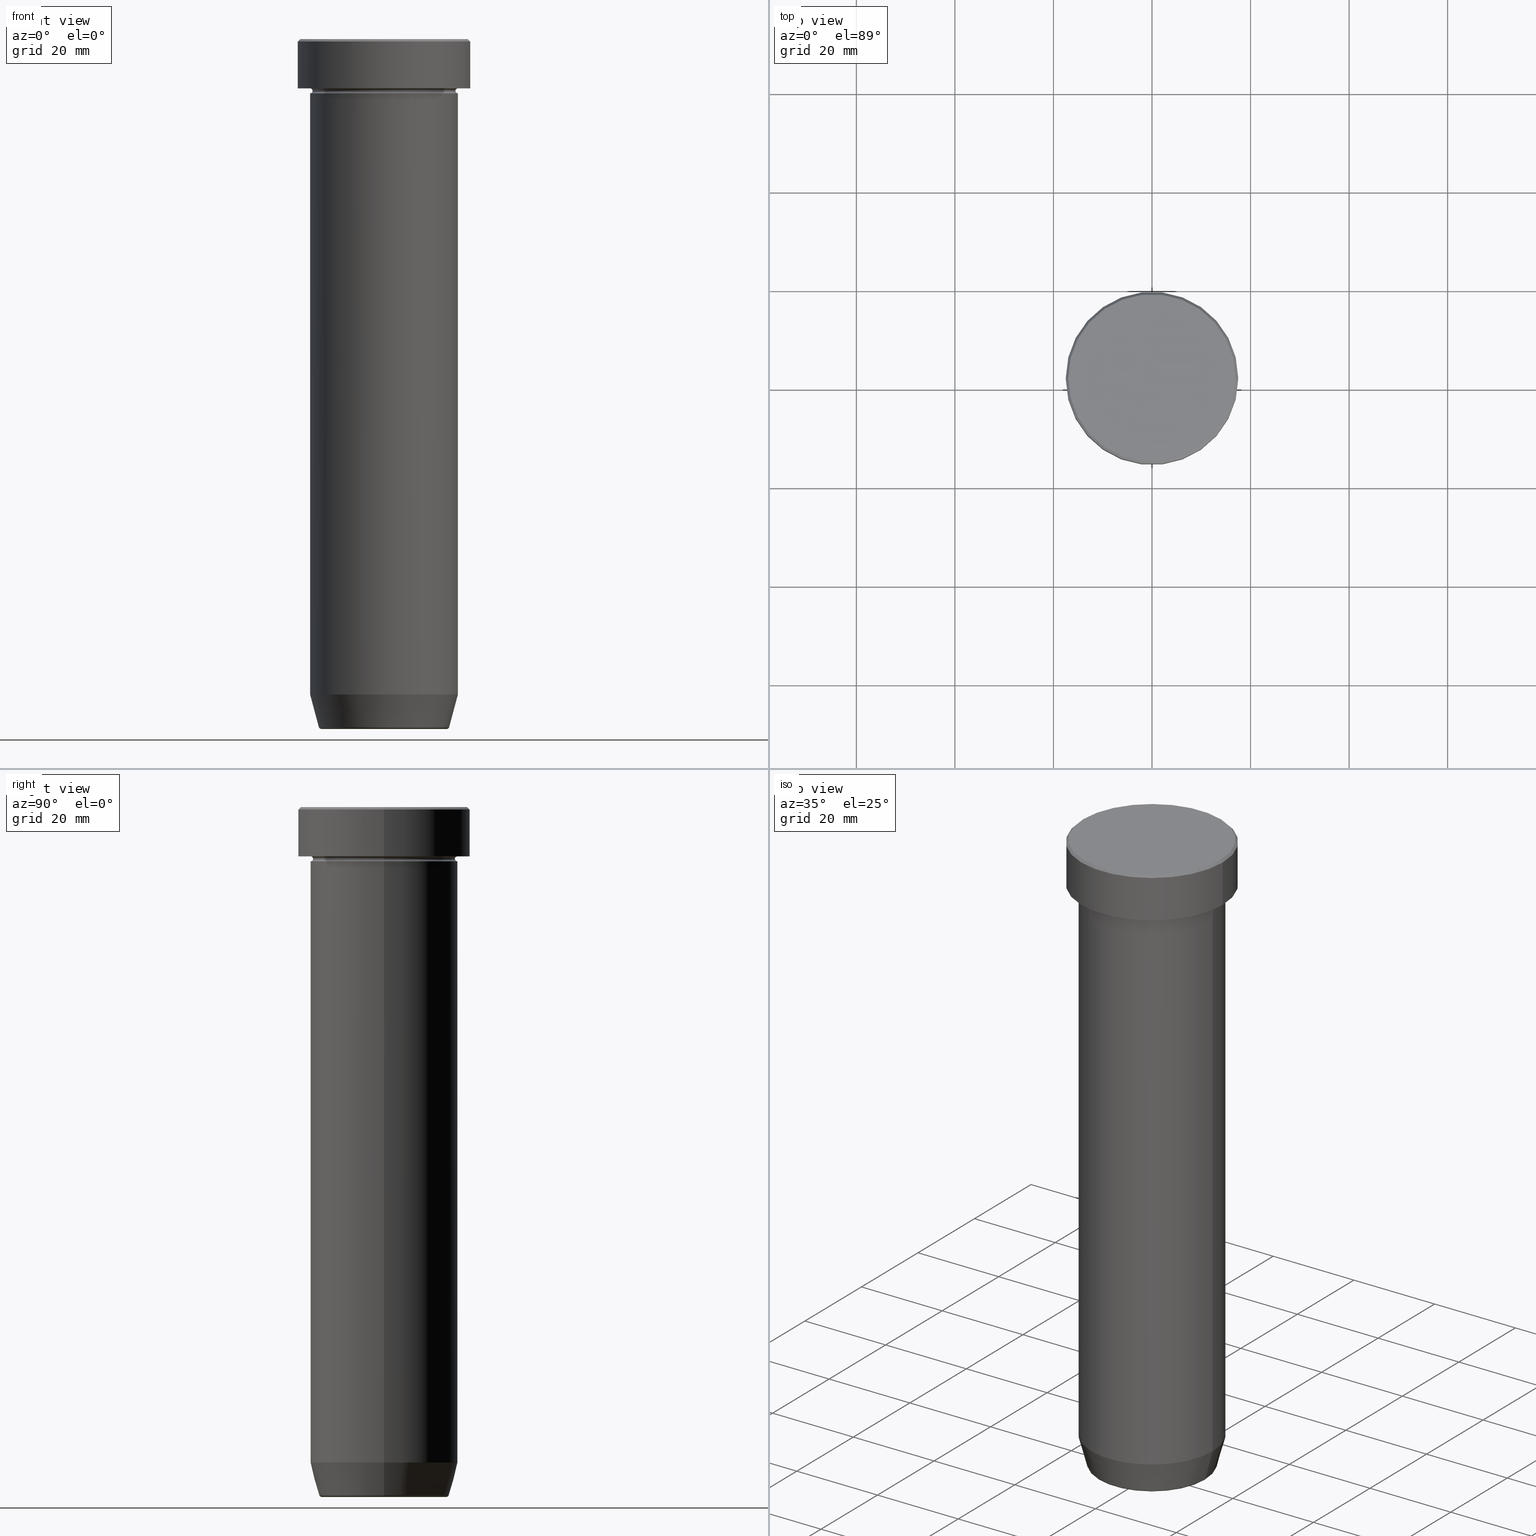
[diagram: canonical four-view strip — front | top / right | iso, engineering-drawing reading convention]
A machine part, canonical four-view strip (front | top / right | iso — engineering-drawing reading convention). The complete STEP part file that produces these views, byte-faithful:
ISO-10303-21;
HEADER;
FILE_DESCRIPTION (( 'STEP AP203' ),
    '1' );
FILE_NAME ('9180.STEP',
    '2024-01-02T17:38:51',
    ( '' ),
    ( '' ),
    'SwSTEP 2.0',
    'SolidWorks 2019',
    '' );
FILE_SCHEMA (( 'CONFIG_CONTROL_DESIGN' ));
ENDSEC;

DATA;
#1 = ORIENTED_EDGE ( 'NONE', *, *, #162, .F. ) ;
#2 = ADVANCED_FACE ( 'NONE', ( #18 ), #221, .F. ) ;
#3 = DIRECTION ( 'NONE',  ( 0.000000000000000000, 0.000000000000000000, -1.000000000000000000 ) ) ;
#4 = VERTEX_POINT ( 'NONE', #153 ) ;
#5 = EDGE_CURVE ( 'NONE', #366, #306, #175, .T. ) ;
#6 = AXIS2_PLACEMENT_3D ( 'NONE', #473, #96, #525 ) ;
#7 = ORIENTED_EDGE ( 'NONE', *, *, #393, .F. ) ;
#8 = PRODUCT_RELATED_PRODUCT_CATEGORY ( 'detail', '', ( #274 ) ) ;
#9 = DIRECTION ( 'NONE',  ( -0.000000000000000000, -0.000000000000000000, 1.000000000000000000 ) ) ;
#10 = EDGE_LOOP ( 'NONE', ( #507, #598, #11, #385 ) ) ;
#11 = ORIENTED_EDGE ( 'NONE', *, *, #591, .F. ) ;
#12 = CARTESIAN_POINT ( 'NONE',  ( 0.000000000000000000, 0.000000000000000000, -36.00000000000000000 ) ) ;
#13 = AXIS2_PLACEMENT_3D ( 'NONE', #69, #258, #444 ) ;
#14 = VECTOR ( 'NONE', #330, 1000.000000000000000 ) ;
#15 = ORIENTED_EDGE ( 'NONE', *, *, #407, .T. ) ;
#16 = PERSON_AND_ORGANIZATION_ROLE ( 'design_supplier' ) ;
#17 = DIRECTION ( 'NONE',  ( 0.2588190451025214611, 0.000000000000000000, 0.9659258262890680902 ) ) ;
#18 = FACE_OUTER_BOUND ( 'NONE', #420, .T. ) ;
#19 = MECHANICAL_CONTEXT ( 'NONE', #140, 'mechanical' ) ;
#20 = CARTESIAN_POINT ( 'NONE',  ( 0.000000000000000000, 0.000000000000000000, -11.00000000000000000 ) ) ;
#21 = CARTESIAN_POINT ( 'NONE',  ( 0.000000000000000000, 0.000000000000000000, -139.9999999999999716 ) ) ;
#22 = DIRECTION ( 'NONE',  ( -1.000000000000000000, -1.224646799147349509E-16, 0.000000000000000000 ) ) ;
#23 = CONICAL_SURFACE ( 'NONE', #369, 13.12435565298212659, 0.2617993877991501850 ) ;
#24 = CARTESIAN_POINT ( 'NONE',  ( 0.000000000000000000, 0.000000000000000000, 0.000000000000000000 ) ) ;
#25 = DIRECTION ( 'NONE',  ( 1.000000000000000000, 0.000000000000000000, 0.000000000000000000 ) ) ;
#26 = APPROVAL_STATUS ( 'not_yet_approved' ) ;
#27 = CIRCLE ( 'NONE', #513, 17.00000000000000000 ) ;
#28 = DIRECTION ( 'NONE',  ( -0.000000000000000000, -0.000000000000000000, 1.000000000000000000 ) ) ;
#29 = CYLINDRICAL_SURFACE ( 'NONE', #334, 17.50000000000000000 ) ;
#30 = DIRECTION ( 'NONE',  ( 0.000000000000000000, 0.000000000000000000, -1.000000000000000000 ) ) ;
#31 = AXIS2_PLACEMENT_3D ( 'NONE', #12, #390, #133 ) ;
#32 = EDGE_CURVE ( 'NONE', #478, #254, #537, .T. ) ;
#33 = AXIS2_PLACEMENT_3D ( 'NONE', #477, #194, #99 ) ;
#34 = DIRECTION ( 'NONE',  ( -0.000000000000000000, -0.000000000000000000, 1.000000000000000000 ) ) ;
#35 = CYLINDRICAL_SURFACE ( 'NONE', #84, 15.00000000000000000 ) ;
#36 = EDGE_LOOP ( 'NONE', ( #509, #553 ) ) ;
#37 = CIRCLE ( 'NONE', #387, 0.5000000000000004441 ) ;
#38 = CARTESIAN_POINT ( 'NONE',  ( -17.00000000000000000, 0.000000000000000000, 0.000000000000000000 ) ) ;
#39 = ORIENTED_EDGE ( 'NONE', *, *, #363, .T. ) ;
#40 = CONICAL_SURFACE ( 'NONE', #442, 17.00000000000000000, 0.7853981633974415066 ) ;
#41 = APPROVAL_ROLE ( '' ) ;
#42 = TOROIDAL_SURFACE ( 'NONE', #61, 12.74069215899265117, 0.5000000000000000000 ) ;
#43 = ADVANCED_FACE ( 'NONE', ( #161 ), #246, .T. ) ;
#44 = ORIENTED_EDGE ( 'NONE', *, *, #117, .F. ) ;
#45 = CARTESIAN_POINT ( 'NONE',  ( 0.000000000000000000, 0.000000000000000000, -36.00000000000000000 ) ) ;
#46 = VERTEX_POINT ( 'NONE', #405 ) ;
#47 = FACE_OUTER_BOUND ( 'NONE', #86, .T. ) ;
#48 = DIRECTION ( 'NONE',  ( -0.000000000000000000, -0.000000000000000000, 1.000000000000000000 ) ) ;
#49 = VERTEX_POINT ( 'NONE', #540 ) ;
#50 = CIRCLE ( 'NONE', #131, 17.50000000000000000 ) ;
#51 = CARTESIAN_POINT ( 'NONE',  ( 0.000000000000000000, 0.000000000000000000, -10.49999999999999822 ) ) ;
#52 = CARTESIAN_POINT ( 'NONE',  ( -12.74069215899265117, 1.560284787143213112E-15, -139.4999999999999716 ) ) ;
#53 = ORIENTED_EDGE ( 'NONE', *, *, #590, .F. ) ;
#54 = CARTESIAN_POINT ( 'NONE',  ( 0.000000000000000000, 0.000000000000000000, -9.999999999999998224 ) ) ;
#55 = CARTESIAN_POINT ( 'NONE',  ( 0.000000000000000000, 0.000000000000000000, -0.5000000000000073275 ) ) ;
#56 = ORIENTED_EDGE ( 'NONE', *, *, #590, .T. ) ;
#57 = DIRECTION ( 'NONE',  ( -0.000000000000000000, -0.000000000000000000, 1.000000000000000000 ) ) ;
#58 = DIRECTION ( 'NONE',  ( 0.000000000000000000, -0.000000000000000000, 1.000000000000000000 ) ) ;
#59 = EDGE_LOOP ( 'NONE', ( #1, #80, #549, #98 ) ) ;
#60 = PRODUCT_DEFINITION_FORMATION_WITH_SPECIFIED_SOURCE ( 'LIBOVOLN�', '', #274, .NOT_KNOWN. ) ;
#61 = AXIS2_PLACEMENT_3D ( 'NONE', #188, #48, #381 ) ;
#62 = DIRECTION ( 'NONE',  ( 0.000000000000000000, 0.000000000000000000, -1.000000000000000000 ) ) ;
#63 = PERSON_AND_ORGANIZATION_ROLE ( 'creator' ) ;
#64 = CARTESIAN_POINT ( 'NONE',  ( 0.000000000000000000, 0.000000000000000000, -139.6294095225512422 ) ) ;
#65 = ORIENTED_EDGE ( 'NONE', *, *, #316, .T. ) ;
#66 = DIRECTION ( 'NONE',  ( -0.000000000000000000, -0.000000000000000000, 1.000000000000000000 ) ) ;
#67 = DIRECTION ( 'NONE',  ( -1.000000000000000000, 0.000000000000000000, 0.000000000000000000 ) ) ;
#68 = DIRECTION ( 'NONE',  ( 1.000000000000000000, 0.000000000000000000, 0.000000000000000000 ) ) ;
#69 = CARTESIAN_POINT ( 'NONE',  ( 0.000000000000000000, 0.000000000000000000, 0.000000000000000000 ) ) ;
#70 = CIRCLE ( 'NONE', #31, 15.00000000000000000 ) ;
#71 = LINE ( 'NONE', #545, #199 ) ;
#72 = APPLICATION_PROTOCOL_DEFINITION ( 'international standard', 'config_control_design', 1994, #140 ) ;
#73 = APPLICATION_PROTOCOL_DEFINITION ( 'international standard', 'config_control_design', 1994, #515 ) ;
#74 = DIRECTION ( 'NONE',  ( -0.000000000000000000, -0.000000000000000000, 1.000000000000000000 ) ) ;
#75 = AXIS2_PLACEMENT_3D ( 'NONE', #111, #74, #354 ) ;
#76 = CARTESIAN_POINT ( 'NONE',  ( 17.50000000000000000, 0.000000000000000000, -9.999999999999998224 ) ) ;
#77 = VERTEX_POINT ( 'NONE', #585 ) ;
#78 = COORDINATED_UNIVERSAL_TIME_OFFSET ( 1, 0, .AHEAD. ) ;
#79 = CYLINDRICAL_SURFACE ( 'NONE', #523, 15.00000000000000000 ) ;
#80 = ORIENTED_EDGE ( 'NONE', *, *, #321, .T. ) ;
#81 = CARTESIAN_POINT ( 'NONE',  ( -17.50000000000000000, 2.143131898507868248E-15, -9.999999999999998224 ) ) ;
#82 = VERTEX_POINT ( 'NONE', #165 ) ;
#83 = AXIS2_PLACEMENT_3D ( 'NONE', #564, #139, #338 ) ;
#84 = AXIS2_PLACEMENT_3D ( 'NONE', #85, #514, #461 ) ;
#85 = CARTESIAN_POINT ( 'NONE',  ( 0.000000000000000000, 0.000000000000000000, 0.000000000000000000 ) ) ;
#86 = EDGE_LOOP ( 'NONE', ( #372, #205, #104, #100 ) ) ;
#87 = DIRECTION ( 'NONE',  ( 1.000000000000000000, 0.000000000000000000, 0.000000000000000000 ) ) ;
#88 = CARTESIAN_POINT ( 'NONE',  ( 0.000000000000000000, 0.000000000000000000, -10.49999999999999822 ) ) ;
#89 = ORIENTED_EDGE ( 'NONE', *, *, #307, .T. ) ;
#90 = ADVANCED_FACE ( 'NONE', ( #360 ), #166, .T. ) ;
#91 = DIRECTION ( 'NONE',  ( 1.000000000000000000, 0.000000000000000000, 0.000000000000000000 ) ) ;
#92 = CARTESIAN_POINT ( 'NONE',  ( -15.00000000000000000, 1.836970198721029589E-15, -10.49999999999999822 ) ) ;
#93 = ORIENTED_EDGE ( 'NONE', *, *, #505, .T. ) ;
#94 = ADVANCED_FACE ( 'NONE', ( #220 ), #23, .T. ) ;
#95 = DESIGN_CONTEXT ( 'detailed design', #515, 'design' ) ;
#96 = DIRECTION ( 'NONE',  ( -0.000000000000000000, -0.000000000000000000, 1.000000000000000000 ) ) ;
#97 = CARTESIAN_POINT ( 'NONE',  ( -17.50000000000000000, 2.143131898507868248E-15, -0.5000000000000073275 ) ) ;
#98 = ORIENTED_EDGE ( 'NONE', *, *, #177, .F. ) ;
#99 = DIRECTION ( 'NONE',  ( 0.000000000000000000, 0.000000000000000000, -1.000000000000000000 ) ) ;
#100 = ORIENTED_EDGE ( 'NONE', *, *, #5, .F. ) ;
#101 = DIRECTION ( 'NONE',  ( 1.000000000000000000, 0.000000000000000000, 0.000000000000000000 ) ) ;
#102 = EDGE_CURVE ( 'NONE', #223, #366, #71, .T. ) ;
#103 = PLANE ( 'NONE',  #576 ) ;
#104 = ORIENTED_EDGE ( 'NONE', *, *, #375, .T. ) ;
#105 = CARTESIAN_POINT ( 'NONE',  ( 12.74069215899265117, 0.000000000000000000, -139.4999999999999716 ) ) ;
#106 = CIRCLE ( 'NONE', #568, 15.00000000000000000 ) ;
#107 = ORIENTED_EDGE ( 'NONE', *, *, #216, .F. ) ;
#108 = DIRECTION ( 'NONE',  ( 1.000000000000000000, 0.000000000000000000, 0.000000000000000000 ) ) ;
#109 = CIRCLE ( 'NONE', #298, 17.50000000000000000 ) ;
#110 = CARTESIAN_POINT ( 'NONE',  ( 0.000000000000000000, 0.000000000000000000, -9.999999999999998224 ) ) ;
#111 = CARTESIAN_POINT ( 'NONE',  ( 0.000000000000000000, 0.000000000000000000, -139.4999999999999716 ) ) ;
#112 = CIRCLE ( 'NONE', #457, 15.00000000000000000 ) ;
#113 = DIRECTION ( 'NONE',  ( 0.000000000000000000, -1.000000000000000000, 0.000000000000000000 ) ) ;
#114 = CIRCLE ( 'NONE', #83, 12.74069215899265117 ) ;
#115 = AXIS2_PLACEMENT_3D ( 'NONE', #245, #150, #580 ) ;
#116 = APPROVAL_DATE_TIME ( #151, #593 ) ;
#117 = EDGE_CURVE ( 'NONE', #229, #306, #123, .T. ) ;
#118 = DIRECTION ( 'NONE',  ( 1.000000000000000000, 0.000000000000000000, 0.000000000000000000 ) ) ;
#119 = AXIS2_PLACEMENT_3D ( 'NONE', #215, #485, #25 ) ;
#120 = DIRECTION ( 'NONE',  ( -0.000000000000000000, -0.000000000000000000, 1.000000000000000000 ) ) ;
#121 = VECTOR ( 'NONE', #376, 1000.000000000000000 ) ;
#122 = EDGE_LOOP ( 'NONE', ( #348, #516 ) ) ;
#123 = LINE ( 'NONE', #455, #557 ) ;
#124 = ORIENTED_EDGE ( 'NONE', *, *, #510, .F. ) ;
#125 = SHAPE_DEFINITION_REPRESENTATION ( #328, #225 ) ;
#126 = ORIENTED_EDGE ( 'NONE', *, *, #496, .T. ) ;
#127 = APPROVAL_DATE_TIME ( #588, #522 ) ;
#128 = TOROIDAL_SURFACE ( 'NONE', #422, 15.00000000000000000, 0.5000000000000000000 ) ;
#129 = FACE_OUTER_BOUND ( 'NONE', #533, .T. ) ;
#130 = VERTEX_POINT ( 'NONE', #552 ) ;
#131 = AXIS2_PLACEMENT_3D ( 'NONE', #54, #57, #435 ) ;
#132 = CC_DESIGN_SECURITY_CLASSIFICATION ( #198, ( #60 ) ) ;
#133 = DIRECTION ( 'NONE',  ( 1.000000000000000000, 0.000000000000000000, 0.000000000000000000 ) ) ;
#134 = ADVANCED_FACE ( 'NONE', ( #179 ), #79, .T. ) ;
#135 = ORIENTED_EDGE ( 'NONE', *, *, #407, .F. ) ;
#136 = LINE ( 'NONE', #570, #14 ) ;
#137 = DIRECTION ( 'NONE',  ( -0.000000000000000000, -0.000000000000000000, 1.000000000000000000 ) ) ;
#138 = ORIENTED_EDGE ( 'NONE', *, *, #117, .T. ) ;
#139 = DIRECTION ( 'NONE',  ( 0.000000000000000000, 0.000000000000000000, -1.000000000000000000 ) ) ;
#140 = APPLICATION_CONTEXT ( 'configuration controlled 3d designs of mechanical parts and assemblies' ) ;
#141 = EDGE_LOOP ( 'NONE', ( #432, #15 ) ) ;
#142 = AXIS2_PLACEMENT_3D ( 'NONE', #64, #252, #544 ) ;
#143 = EDGE_CURVE ( 'NONE', #4, #82, #592, .T. ) ;
#144 = LOCAL_TIME ( 18, 38, 51.00000000000000000, #351 ) ;
#145 = CIRCLE ( 'NONE', #425, 15.00000000000000000 ) ;
#146 = DIRECTION ( 'NONE',  ( -0.000000000000000000, -0.000000000000000000, 1.000000000000000000 ) ) ;
#147 = ORIENTED_EDGE ( 'NONE', *, *, #102, .F. ) ;
#148 = FACE_OUTER_BOUND ( 'NONE', #10, .T. ) ;
#149 = DIRECTION ( 'NONE',  ( 1.000000000000000000, 0.000000000000000000, 0.000000000000000000 ) ) ;
#150 = DIRECTION ( 'NONE',  ( 0.000000000000000000, 0.000000000000000000, -1.000000000000000000 ) ) ;
#151 = DATE_AND_TIME ( #256, #310 ) ;
#152 = DIRECTION ( 'NONE',  ( 1.000000000000000000, 0.000000000000000000, 0.000000000000000000 ) ) ;
#153 = CARTESIAN_POINT ( 'NONE',  ( 15.00000000000000000, 0.000000000000000000, -36.00000000000000000 ) ) ;
#154 = AXIS2_PLACEMENT_3D ( 'NONE', #347, #137, #285 ) ;
#155 = PERSON_AND_ORGANIZATION ( #339, #185 ) ;
#156 = AXIS2_PLACEMENT_3D ( 'NONE', #427, #9, #520 ) ;
#157 = DIRECTION ( 'NONE',  ( 0.000000000000000000, 0.000000000000000000, -1.000000000000000000 ) ) ;
#158 = CIRCLE ( 'NONE', #186, 15.00000000000000000 ) ;
#159 = CC_DESIGN_PERSON_AND_ORGANIZATION_ASSIGNMENT ( #357, #203, ( #198 ) ) ;
#160 = CARTESIAN_POINT ( 'NONE',  ( 0.000000000000000000, 0.000000000000000000, 0.000000000000000000 ) ) ;
#161 = FACE_OUTER_BOUND ( 'NONE', #325, .T. ) ;
#162 = EDGE_CURVE ( 'NONE', #475, #130, #169, .T. ) ;
#163 = SECURITY_CLASSIFICATION_LEVEL ( 'unclassified' ) ;
#164 = APPROVAL_ROLE ( '' ) ;
#165 = CARTESIAN_POINT ( 'NONE',  ( 15.00000000000000000, 0.000000000000000000, -11.00000000000000000 ) ) ;
#166 = CONICAL_SURFACE ( 'NONE', #270, 17.00000000000000000, 0.7853981633974415066 ) ;
#167 = ADVANCED_FACE ( 'NONE', ( #129 ), #35, .T. ) ;
#168 = PLANE ( 'NONE',  #301 ) ;
#169 = LINE ( 'NONE', #273, #414 ) ;
#170 = EDGE_LOOP ( 'NONE', ( #44, #465, #181, #382 ) ) ;
#171 = CIRCLE ( 'NONE', #519, 14.49999999999999822 ) ;
#172 = FACE_OUTER_BOUND ( 'NONE', #196, .T. ) ;
#173 = CIRCLE ( 'NONE', #586, 0.5000000000000004441 ) ;
#174 = ORIENTED_EDGE ( 'NONE', *, *, #197, .F. ) ;
#175 = CIRCLE ( 'NONE', #115, 17.50000000000000000 ) ;
#176 = DIRECTION ( 'NONE',  ( -1.000000000000000000, 0.000000000000000000, 0.000000000000000000 ) ) ;
#177 = EDGE_CURVE ( 'NONE', #130, #254, #145, .T. ) ;
#178 = ORIENTED_EDGE ( 'NONE', *, *, #453, .T. ) ;
#179 = FACE_OUTER_BOUND ( 'NONE', #331, .T. ) ;
#180 = AXIS2_PLACEMENT_3D ( 'NONE', #303, #497, #373 ) ;
#181 = ORIENTED_EDGE ( 'NONE', *, *, #102, .T. ) ;
#182 = FACE_OUTER_BOUND ( 'NONE', #528, .T. ) ;
#183 = DIRECTION ( 'NONE',  ( 1.000000000000000000, 0.000000000000000000, 0.000000000000000000 ) ) ;
#184 = ORIENTED_EDGE ( 'NONE', *, *, #363, .F. ) ;
#185 = ORGANIZATION ( 'NEUR�EN�', 'NEUR�EN�', '' ) ;
#186 = AXIS2_PLACEMENT_3D ( 'NONE', #452, #558, #503 ) ;
#187 = DIRECTION ( 'NONE',  ( -1.000000000000000000, 0.000000000000000000, 0.000000000000000000 ) ) ;
#188 = CARTESIAN_POINT ( 'NONE',  ( 0.000000000000000000, 0.000000000000000000, -139.4999999999999716 ) ) ;
#189 = ORIENTED_EDGE ( 'NONE', *, *, #364, .T. ) ;
#190 = FACE_OUTER_BOUND ( 'NONE', #504, .T. ) ;
#191 = CARTESIAN_POINT ( 'NONE',  ( -15.00000000000000000, 0.000000000000000000, -9.999999999999998224 ) ) ;
#192 = VERTEX_POINT ( 'NONE', #38 ) ;
#193 = CARTESIAN_POINT ( 'NONE',  ( 0.000000000000000000, 0.000000000000000000, -139.9999999999999716 ) ) ;
#194 = DIRECTION ( 'NONE',  ( 0.000000000000000000, -1.000000000000000000, 0.000000000000000000 ) ) ;
#195 = CIRCLE ( 'NONE', #142, 13.22365507213718416 ) ;
#196 = EDGE_LOOP ( 'NONE', ( #344, #240 ) ) ;
#197 = EDGE_CURVE ( 'NONE', #242, #82, #237, .T. ) ;
#198 = SECURITY_CLASSIFICATION ( '', '', #163 ) ;
#199 = VECTOR ( 'NONE', #599, 1000.000000000000000 ) ;
#200 = DIRECTION ( 'NONE',  ( -0.000000000000000000, -0.000000000000000000, 1.000000000000000000 ) ) ;
#201 = EDGE_LOOP ( 'NONE', ( #124, #189, #89, #227 ) ) ;
#202 = EDGE_CURVE ( 'NONE', #4, #46, #226, .T. ) ;
#203 = PERSON_AND_ORGANIZATION_ROLE ( 'classification_officer' ) ;
#204 = CARTESIAN_POINT ( 'NONE',  ( 0.000000000000000000, 0.000000000000000000, -132.9999999999999432 ) ) ;
#205 = ORIENTED_EDGE ( 'NONE', *, *, #401, .F. ) ;
#206 = PERSON_AND_ORGANIZATION ( #339, #185 ) ;
#207 = EDGE_CURVE ( 'NONE', #295, #49, #106, .T. ) ;
#208 = CARTESIAN_POINT ( 'NONE',  ( 17.50000000000000000, 0.000000000000000000, -0.5000000000000073275 ) ) ;
#209 = DIRECTION ( 'NONE',  ( -0.000000000000000000, -0.000000000000000000, 1.000000000000000000 ) ) ;
#210 = CARTESIAN_POINT ( 'NONE',  ( 0.000000000000000000, 0.000000000000000000, -36.00000000000000000 ) ) ;
#211 = ADVANCED_FACE ( 'NONE', ( #230, #317 ), #458, .T. ) ;
#212 = CARTESIAN_POINT ( 'NONE',  ( 17.00000000000000000, 2.081899558550500280E-15, 0.000000000000000000 ) ) ;
#213 = APPROVAL_DATE_TIME ( #443, #253 ) ;
#214 = DIRECTION ( 'NONE',  ( 1.000000000000000000, 0.000000000000000000, 0.000000000000000000 ) ) ;
#215 = CARTESIAN_POINT ( 'NONE',  ( 0.000000000000000000, 0.000000000000000000, -139.9999999999999716 ) ) ;
#216 = EDGE_CURVE ( 'NONE', #49, #295, #158, .T. ) ;
#217 = TOROIDAL_SURFACE ( 'NONE', #483, 15.00000000000000000, 0.5000000000000000000 ) ;
#218 = DIRECTION ( 'NONE',  ( 1.000000000000000000, 0.000000000000000000, 0.000000000000000000 ) ) ;
#219 = CIRCLE ( 'NONE', #555, 13.22365507213718416 ) ;
#220 = FACE_OUTER_BOUND ( 'NONE', #201, .T. ) ;
#221 = TOROIDAL_SURFACE ( 'NONE', #350, 15.00000000000000000, 0.5000000000000000000 ) ;
#222 = PERSON_AND_ORGANIZATION ( #339, #185 ) ;
#223 = VERTEX_POINT ( 'NONE', #76 ) ;
#224 = DIRECTION ( 'NONE',  ( 1.000000000000000000, 0.000000000000000000, 0.000000000000000000 ) ) ;
#225 = ADVANCED_BREP_SHAPE_REPRESENTATION ( '9180', ( #490, #308, #263 ), #450 ) ;
#226 = CIRCLE ( 'NONE', #409, 15.00000000000000000 ) ;
#227 = ORIENTED_EDGE ( 'NONE', *, *, #321, .F. ) ;
#228 = DIRECTION ( 'NONE',  ( -1.000000000000000000, 0.000000000000000000, -0.000000000000000000 ) ) ;
#229 = VERTEX_POINT ( 'NONE', #81 ) ;
#230 = FACE_BOUND ( 'NONE', #36, .T. ) ;
#231 = ORIENTED_EDGE ( 'NONE', *, *, #279, .T. ) ;
#232 = ADVANCED_FACE ( 'NONE', ( #172 ), #371, .F. ) ;
#233 = DIRECTION ( 'NONE',  ( -0.000000000000000000, -1.000000000000000000, -0.000000000000000000 ) ) ;
#234 = DIRECTION ( 'NONE',  ( 1.224646799147353207E-16, 1.000000000000000000, 0.000000000000000000 ) ) ;
#235 = ORIENTED_EDGE ( 'NONE', *, *, #467, .F. ) ;
#236 = AXIS2_PLACEMENT_3D ( 'NONE', #210, #66, #68 ) ;
#237 = CIRCLE ( 'NONE', #494, 15.00000000000000000 ) ;
#238 = CYLINDRICAL_SURFACE ( 'NONE', #156, 17.50000000000000000 ) ;
#239 = CARTESIAN_POINT ( 'NONE',  ( -14.49999999999999822, 1.806354028742345802E-15, -10.49999999999999822 ) ) ;
#240 = ORIENTED_EDGE ( 'NONE', *, *, #572, .T. ) ;
#241 = DIRECTION ( 'NONE',  ( 1.224646799147353207E-16, 1.000000000000000000, 0.000000000000000000 ) ) ;
#242 = VERTEX_POINT ( 'NONE', #464 ) ;
#243 = CARTESIAN_POINT ( 'NONE',  ( -15.00000000000000000, 1.836970198721029589E-15, 0.000000000000000000 ) ) ;
#244 = DIRECTION ( 'NONE',  ( 1.000000000000000000, 0.000000000000000000, 0.000000000000000000 ) ) ;
#245 = CARTESIAN_POINT ( 'NONE',  ( 0.000000000000000000, 0.000000000000000000, -0.5000000000000073275 ) ) ;
#246 = TOROIDAL_SURFACE ( 'NONE', #75, 12.74069215899265117, 0.5000000000000000000 ) ;
#247 = DIRECTION ( 'NONE',  ( 1.000000000000000000, 0.000000000000000000, 0.000000000000000000 ) ) ;
#248 = CARTESIAN_POINT ( 'NONE',  ( 15.00000000000000000, 0.000000000000000000, -36.00000000000000000 ) ) ;
#249 = ORIENTED_EDGE ( 'NONE', *, *, #505, .F. ) ;
#250 = EDGE_CURVE ( 'NONE', #478, #475, #587, .T. ) ;
#251 = PERSON_AND_ORGANIZATION ( #339, #185 ) ;
#252 = DIRECTION ( 'NONE',  ( -0.000000000000000000, -0.000000000000000000, 1.000000000000000000 ) ) ;
#253 = APPROVAL ( #26, 'NEUR�EN�' ) ;
#254 = VERTEX_POINT ( 'NONE', #248 ) ;
#255 = CARTESIAN_POINT ( 'NONE',  ( 0.000000000000000000, 0.000000000000000000, 0.000000000000000000 ) ) ;
#256 = CALENDAR_DATE ( 2024, 2, 1 ) ;
#257 = APPROVAL_PERSON_ORGANIZATION ( #400, #593, #491 ) ;
#258 = DIRECTION ( 'NONE',  ( -0.000000000000000000, -0.000000000000000000, 1.000000000000000000 ) ) ;
#259 = VECTOR ( 'NONE', #28, 1000.000000000000000 ) ;
#260 = DATE_AND_TIME ( #345, #413 ) ;
#261 = CARTESIAN_POINT ( 'NONE',  ( -17.00000000000000000, 0.000000000000000000, 0.000000000000000000 ) ) ;
#262 = DIRECTION ( 'NONE',  ( -1.224646799147353207E-16, 1.000000000000000000, 0.000000000000000000 ) ) ;
#263 = AXIS2_PLACEMENT_3D ( 'NONE', #24, #437, #214 ) ;
#264 = DIRECTION ( 'NONE',  ( 1.000000000000000000, 0.000000000000000000, 0.000000000000000000 ) ) ;
#265 = EDGE_CURVE ( 'NONE', #315, #82, #292, .T. ) ;
#266 = ORIENTED_EDGE ( 'NONE', *, *, #579, .T. ) ;
#267 = CC_DESIGN_PERSON_AND_ORGANIZATION_ASSIGNMENT ( #206, #63, ( #314 ) ) ;
#268 = CARTESIAN_POINT ( 'NONE',  ( 15.00000000000000000, 0.000000000000000000, 0.000000000000000000 ) ) ;
#269 = VERTEX_POINT ( 'NONE', #574 ) ;
#270 = AXIS2_PLACEMENT_3D ( 'NONE', #449, #30, #439 ) ;
#271 = VERTEX_POINT ( 'NONE', #239 ) ;
#272 = VECTOR ( 'NONE', #539, 1000.000000000000000 ) ;
#273 = CARTESIAN_POINT ( 'NONE',  ( -15.00000000000000000, 1.836970198721029589E-15, 0.000000000000000000 ) ) ;
#274 = PRODUCT ( '9180', '9180', '', ( #19 ) ) ;
#275 = ORIENTED_EDGE ( 'NONE', *, *, #510, .T. ) ;
#276 = ORIENTED_EDGE ( 'NONE', *, *, #384, .F. ) ;
#277 = CYLINDRICAL_SURFACE ( 'NONE', #358, 15.00000000000000000 ) ;
#278 = DIRECTION ( 'NONE',  ( -0.000000000000000000, -0.000000000000000000, 1.000000000000000000 ) ) ;
#279 = EDGE_CURVE ( 'NONE', #306, #366, #399, .T. ) ;
#280 = ADVANCED_FACE ( 'NONE', ( #388 ), #42, .T. ) ;
#281 = FACE_OUTER_BOUND ( 'NONE', #335, .T. ) ;
#282 = DIRECTION ( 'NONE',  ( 0.000000000000000000, -0.000000000000000000, 1.000000000000000000 ) ) ;
#283 = ORIENTED_EDGE ( 'NONE', *, *, #453, .F. ) ;
#284 = CARTESIAN_POINT ( 'NONE',  ( 0.000000000000000000, 0.000000000000000000, -10.49999999999999822 ) ) ;
#285 = DIRECTION ( 'NONE',  ( 1.000000000000000000, 0.000000000000000000, 0.000000000000000000 ) ) ;
#286 = ORIENTED_EDGE ( 'NONE', *, *, #579, .F. ) ;
#287 = DIRECTION ( 'NONE',  ( 0.000000000000000000, 0.000000000000000000, -1.000000000000000000 ) ) ;
#288 = EDGE_CURVE ( 'NONE', #271, #242, #451, .T. ) ;
#289 = DIRECTION ( 'NONE',  ( 1.000000000000000000, 0.000000000000000000, 0.000000000000000000 ) ) ;
#290 = ORIENTED_EDGE ( 'NONE', *, *, #177, .T. ) ;
#291 = CIRCLE ( 'NONE', #236, 15.00000000000000000 ) ;
#292 = CIRCLE ( 'NONE', #33, 0.5000000000000004441 ) ;
#293 = DIRECTION ( 'NONE',  ( -0.000000000000000000, -0.000000000000000000, 1.000000000000000000 ) ) ;
#294 = EDGE_CURVE ( 'NONE', #389, #269, #416, .T. ) ;
#295 = VERTEX_POINT ( 'NONE', #191 ) ;
#296 = COORDINATED_UNIVERSAL_TIME_OFFSET ( 1, 0, .AHEAD. ) ;
#297 = DIRECTION ( 'NONE',  ( -0.000000000000000000, -0.000000000000000000, 1.000000000000000000 ) ) ;
#298 = AXIS2_PLACEMENT_3D ( 'NONE', #110, #297, #299 ) ;
#299 = DIRECTION ( 'NONE',  ( 1.000000000000000000, 0.000000000000000000, 0.000000000000000000 ) ) ;
#300 = DIRECTION ( 'NONE',  ( 1.000000000000000000, 0.000000000000000000, 0.000000000000000000 ) ) ;
#301 = AXIS2_PLACEMENT_3D ( 'NONE', #530, #404, #359 ) ;
#302 = AXIS2_PLACEMENT_3D ( 'NONE', #415, #282, #474 ) ;
#303 = CARTESIAN_POINT ( 'NONE',  ( 0.000000000000000000, 15.00000000000000000, -36.00000000000000000 ) ) ;
#304 =( NAMED_UNIT ( * ) SI_UNIT ( $, .STERADIAN. ) SOLID_ANGLE_UNIT ( ) );
#305 = FACE_OUTER_BOUND ( 'NONE', #122, .T. ) ;
#306 = VERTEX_POINT ( 'NONE', #97 ) ;
#307 = EDGE_CURVE ( 'NONE', #77, #478, #517, .T. ) ;
#308 = MANIFOLD_SOLID_BREP ( 'Zaoblit4', #378 ) ;
#309 = VECTOR ( 'NONE', #535, 1000.000000000000000 ) ;
#310 = LOCAL_TIME ( 18, 38, 51.00000000000000000, #583 ) ;
#311 = CC_DESIGN_DATE_AND_TIME_ASSIGNMENT ( #260, #446, ( #314 ) ) ;
#312 = DIRECTION ( 'NONE',  ( -0.000000000000000000, -0.000000000000000000, 1.000000000000000000 ) ) ;
#313 = AXIS2_PLACEMENT_3D ( 'NONE', #419, #3, #228 ) ;
#314 = PRODUCT_DEFINITION ( 'NEZN�M�', '', #60, #95 ) ;
#315 = VERTEX_POINT ( 'NONE', #561 ) ;
#316 = EDGE_CURVE ( 'NONE', #271, #315, #171, .T. ) ;
#317 = FACE_OUTER_BOUND ( 'NONE', #436, .T. ) ;
#318 = ORIENTED_EDGE ( 'NONE', *, *, #307, .F. ) ;
#319 = ORIENTED_EDGE ( 'NONE', *, *, #279, .F. ) ;
#320 = ADVANCED_FACE ( 'NONE', ( #428 ), #128, .F. ) ;
#321 = EDGE_CURVE ( 'NONE', #475, #478, #480, .T. ) ;
#322 = CARTESIAN_POINT ( 'NONE',  ( 0.000000000000000000, 0.000000000000000000, 0.000000000000000000 ) ) ;
#323 = TOROIDAL_SURFACE ( 'NONE', #531, 15.00000000000000000, 0.5000000000000000000 ) ;
#324 = AXIS2_PLACEMENT_3D ( 'NONE', #55, #470, #149 ) ;
#325 = EDGE_LOOP ( 'NONE', ( #341, #559, #460, #454 ) ) ;
#326 = CARTESIAN_POINT ( 'NONE',  ( 0.000000000000000000, 0.000000000000000000, 0.000000000000000000 ) ) ;
#327 = DIRECTION ( 'NONE',  ( -0.000000000000000000, -0.000000000000000000, 1.000000000000000000 ) ) ;
#328 = PRODUCT_DEFINITION_SHAPE ( 'NONE', 'NONE',  #314 ) ;
#329 = ORIENTED_EDGE ( 'NONE', *, *, #250, .F. ) ;
#330 = DIRECTION ( 'NONE',  ( -0.2588190451025214611, 3.169619151431773569E-17, 0.9659258262890680902 ) ) ;
#331 = EDGE_LOOP ( 'NONE', ( #569, #595, #184, #546 ) ) ;
#332 = ADVANCED_FACE ( 'NONE', ( #565 ), #103, .T. ) ;
#333 = DIRECTION ( 'NONE',  ( 0.000000000000000000, 0.000000000000000000, -1.000000000000000000 ) ) ;
#334 = AXIS2_PLACEMENT_3D ( 'NONE', #160, #353, #218 ) ;
#335 = EDGE_LOOP ( 'NONE', ( #392, #286, #374, #39 ) ) ;
#336 = LOCAL_TIME ( 18, 38, 51.00000000000000000, #78 ) ;
#337 = EDGE_CURVE ( 'NONE', #411, #366, #448, .T. ) ;
#338 = DIRECTION ( 'NONE',  ( 1.000000000000000000, 0.000000000000000000, 0.000000000000000000 ) ) ;
#339 = PERSON ( 'NEUR�EN�', 'NEUR�EN�', 'NEUR�EN�', ('NEUR�EN�'), ('NEUR�EN�'), ('NEUR�EN�') ) ;
#340 = CARTESIAN_POINT ( 'NONE',  ( 0.000000000000000000, 0.000000000000000000, 0.000000000000000000 ) ) ;
#341 = ORIENTED_EDGE ( 'NONE', *, *, #294, .F. ) ;
#342 = FACE_OUTER_BOUND ( 'NONE', #59, .T. ) ;
#343 = DIRECTION ( 'NONE',  ( -1.000000000000000000, 1.224646799147353454E-16, 0.000000000000000000 ) ) ;
#344 = ORIENTED_EDGE ( 'NONE', *, *, #346, .T. ) ;
#345 = CALENDAR_DATE ( 2024, 2, 1 ) ;
#346 = EDGE_CURVE ( 'NONE', #418, #389, #396, .T. ) ;
#347 = CARTESIAN_POINT ( 'NONE',  ( 0.000000000000000000, 0.000000000000000000, -132.9999999999999432 ) ) ;
#348 = ORIENTED_EDGE ( 'NONE', *, *, #202, .F. ) ;
#349 = APPROVAL_PERSON_ORGANIZATION ( #251, #253, #164 ) ;
#350 = AXIS2_PLACEMENT_3D ( 'NONE', #482, #62, #571 ) ;
#351 = COORDINATED_UNIVERSAL_TIME_OFFSET ( 1, 0, .AHEAD. ) ;
#352 = LINE ( 'NONE', #261, #272 ) ;
#353 = DIRECTION ( 'NONE',  ( -0.000000000000000000, -0.000000000000000000, 1.000000000000000000 ) ) ;
#354 = DIRECTION ( 'NONE',  ( 1.000000000000000000, 0.000000000000000000, 0.000000000000000000 ) ) ;
#355 = ADVANCED_FACE ( 'NONE', ( #578 ), #29, .T. ) ;
#356 = DATE_AND_TIME ( #541, #144 ) ;
#357 = PERSON_AND_ORGANIZATION ( #339, #185 ) ;
#358 = AXIS2_PLACEMENT_3D ( 'NONE', #468, #479, #247 ) ;
#359 = DIRECTION ( 'NONE',  ( -1.000000000000000000, 0.000000000000000000, -0.000000000000000000 ) ) ;
#360 = FACE_OUTER_BOUND ( 'NONE', #472, .T. ) ;
#361 = ADVANCED_FACE ( 'NONE', ( #589 ), #168, .F. ) ;
#362 = EDGE_CURVE ( 'NONE', #418, #77, #37, .T. ) ;
#363 = EDGE_CURVE ( 'NONE', #82, #242, #112, .T. ) ;
#364 = EDGE_CURVE ( 'NONE', #269, #77, #195, .T. ) ;
#365 = CARTESIAN_POINT ( 'NONE',  ( 0.000000000000000000, 0.000000000000000000, -11.00000000000000000 ) ) ;
#366 = VERTEX_POINT ( 'NONE', #208 ) ;
#367 = AXIS2_PLACEMENT_3D ( 'NONE', #193, #200, #101 ) ;
#368 = CARTESIAN_POINT ( 'NONE',  ( 0.000000000000000000, 0.000000000000000000, -9.999999999999998224 ) ) ;
#369 = AXIS2_PLACEMENT_3D ( 'NONE', #21, #209, #300 ) ;
#370 = ORIENTED_EDGE ( 'NONE', *, *, #572, .F. ) ;
#371 = PLANE ( 'NONE',  #302 ) ;
#372 = ORIENTED_EDGE ( 'NONE', *, *, #337, .F. ) ;
#373 = DIRECTION ( 'NONE',  ( -1.000000000000000000, 0.000000000000000000, -0.000000000000000000 ) ) ;
#374 = ORIENTED_EDGE ( 'NONE', *, *, #265, .T. ) ;
#375 = EDGE_CURVE ( 'NONE', #192, #306, #352, .T. ) ;
#376 = DIRECTION ( 'NONE',  ( -0.000000000000000000, -0.000000000000000000, 1.000000000000000000 ) ) ;
#377 = DIRECTION ( 'NONE',  ( -0.000000000000000000, -0.000000000000000000, 1.000000000000000000 ) ) ;
#378 = CLOSED_SHELL ( 'NONE', ( #280, #440, #487, #361, #532, #94, #232, #43 ) ) ;
#379 = EDGE_LOOP ( 'NONE', ( #562, #290 ) ) ;
#380 = CARTESIAN_POINT ( 'NONE',  ( -15.00000000000000355, 1.836970198721029983E-15, -132.9999999999999432 ) ) ;
#381 = DIRECTION ( 'NONE',  ( 1.000000000000000000, 0.000000000000000000, 0.000000000000000000 ) ) ;
#382 = ORIENTED_EDGE ( 'NONE', *, *, #5, .T. ) ;
#383 = FACE_OUTER_BOUND ( 'NONE', #512, .T. ) ;
#384 = EDGE_CURVE ( 'NONE', #229, #223, #109, .T. ) ;
#385 = ORIENTED_EDGE ( 'NONE', *, *, #32, .F. ) ;
#386 = CYLINDRICAL_SURFACE ( 'NONE', #434, 15.00000000000000000 ) ;
#387 = AXIS2_PLACEMENT_3D ( 'NONE', #105, #113, #157 ) ;
#388 = FACE_OUTER_BOUND ( 'NONE', #518, .T. ) ;
#389 = VERTEX_POINT ( 'NONE', #584 ) ;
#390 = DIRECTION ( 'NONE',  ( -0.000000000000000000, -0.000000000000000000, 1.000000000000000000 ) ) ;
#391 = DIRECTION ( 'NONE',  ( 1.000000000000000000, 0.000000000000000000, 0.000000000000000000 ) ) ;
#392 = ORIENTED_EDGE ( 'NONE', *, *, #288, .F. ) ;
#393 = EDGE_CURVE ( 'NONE', #77, #269, #219, .T. ) ;
#394 = ORIENTED_EDGE ( 'NONE', *, *, #316, .F. ) ;
#395 =( LENGTH_UNIT ( ) NAMED_UNIT ( * ) SI_UNIT ( .MILLI., .METRE. ) );
#396 = CIRCLE ( 'NONE', #119, 12.74069215899265117 ) ;
#397 = DIRECTION ( 'NONE',  ( -0.000000000000000000, -0.000000000000000000, 1.000000000000000000 ) ) ;
#398 = LOCAL_TIME ( 18, 38, 51.00000000000000000, #296 ) ;
#399 = CIRCLE ( 'NONE', #324, 17.50000000000000000 ) ;
#400 = PERSON_AND_ORGANIZATION ( #339, #185 ) ;
#401 = EDGE_CURVE ( 'NONE', #192, #411, #27, .T. ) ;
#402 = CIRCLE ( 'NONE', #13, 17.00000000000000000 ) ;
#403 = CARTESIAN_POINT ( 'NONE',  ( 17.00000000000000000, 2.112515728529184067E-15, 0.000000000000000000 ) ) ;
#404 = DIRECTION ( 'NONE',  ( 0.000000000000000000, 0.000000000000000000, -1.000000000000000000 ) ) ;
#405 = CARTESIAN_POINT ( 'NONE',  ( -15.00000000000000000, 1.836970198721029589E-15, -36.00000000000000000 ) ) ;
#406 = VECTOR ( 'NONE', #17, 1000.000000000000000 ) ;
#407 = EDGE_CURVE ( 'NONE', #411, #192, #402, .T. ) ;
#408 = CC_DESIGN_APPROVAL ( #253, ( #60 ) ) ;
#409 = AXIS2_PLACEMENT_3D ( 'NONE', #508, #312, #183 ) ;
#410 = DIRECTION ( 'NONE',  ( -0.000000000000000000, -0.000000000000000000, 1.000000000000000000 ) ) ;
#411 = VERTEX_POINT ( 'NONE', #403 ) ;
#412 = CC_DESIGN_PERSON_AND_ORGANIZATION_ASSIGNMENT ( #534, #16, ( #60 ) ) ;
#413 = LOCAL_TIME ( 18, 38, 51.00000000000000000, #441 ) ;
#414 = VECTOR ( 'NONE', #377, 1000.000000000000000 ) ;
#415 = CARTESIAN_POINT ( 'NONE',  ( 0.000000000000000000, 1.102182119232617911E-14, -139.9999999999999716 ) ) ;
#416 = CIRCLE ( 'NONE', #466, 0.5000000000000004441 ) ;
#417 = ORIENTED_EDGE ( 'NONE', *, *, #207, .F. ) ;
#418 = VERTEX_POINT ( 'NONE', #582 ) ;
#419 = CARTESIAN_POINT ( 'NONE',  ( 0.000000000000000000, 17.50000000000000000, -9.999999999999998224 ) ) ;
#420 = EDGE_LOOP ( 'NONE', ( #53, #266, #93, #107 ) ) ;
#421 = ADVANCED_FACE ( 'NONE', ( #305 ), #542, .T. ) ;
#422 = AXIS2_PLACEMENT_3D ( 'NONE', #527, #146, #289 ) ;
#423 = LINE ( 'NONE', #243, #121 ) ;
#424 = CONICAL_SURFACE ( 'NONE', #367, 13.12435565298212659, 0.2617993877991501850 ) ;
#425 = AXIS2_PLACEMENT_3D ( 'NONE', #45, #410, #264 ) ;
#426 = ORIENTED_EDGE ( 'NONE', *, *, #294, .T. ) ;
#427 = CARTESIAN_POINT ( 'NONE',  ( 0.000000000000000000, 0.000000000000000000, 0.000000000000000000 ) ) ;
#428 = FACE_OUTER_BOUND ( 'NONE', #429, .T. ) ;
#429 = EDGE_LOOP ( 'NONE', ( #394, #526, #498, #575 ) ) ;
#430 = DIRECTION ( 'NONE',  ( -0.000000000000000000, -0.000000000000000000, 1.000000000000000000 ) ) ;
#431 = DIRECTION ( 'NONE',  ( -0.000000000000000000, -0.000000000000000000, 1.000000000000000000 ) ) ;
#432 = ORIENTED_EDGE ( 'NONE', *, *, #401, .T. ) ;
#433 = CARTESIAN_POINT ( 'NONE',  ( 15.00000000000000178, 0.000000000000000000, -132.9999999999999432 ) ) ;
#434 = AXIS2_PLACEMENT_3D ( 'NONE', #463, #556, #87 ) ;
#435 = DIRECTION ( 'NONE',  ( 1.000000000000000000, 0.000000000000000000, 0.000000000000000000 ) ) ;
#436 = EDGE_LOOP ( 'NONE', ( #283, #276 ) ) ;
#437 = DIRECTION ( 'NONE',  ( 0.000000000000000000, 0.000000000000000000, 1.000000000000000000 ) ) ;
#438 = CARTESIAN_POINT ( 'NONE',  ( 0.000000000000000000, 0.000000000000000000, -139.6294095225512422 ) ) ;
#439 = DIRECTION ( 'NONE',  ( -1.000000000000000000, 0.000000000000000000, 0.000000000000000000 ) ) ;
#440 = ADVANCED_FACE ( 'NONE', ( #383 ), #424, .T. ) ;
#441 = COORDINATED_UNIVERSAL_TIME_OFFSET ( 1, 0, .AHEAD. ) ;
#442 = AXIS2_PLACEMENT_3D ( 'NONE', #326, #287, #560 ) ;
#443 = DATE_AND_TIME ( #577, #398 ) ;
#444 = DIRECTION ( 'NONE',  ( 1.000000000000000000, 0.000000000000000000, 0.000000000000000000 ) ) ;
#445 = ADVANCED_FACE ( 'NONE', ( #182 ), #323, .F. ) ;
#446 = DATE_TIME_ROLE ( 'creation_date' ) ;
#447 = APPROVAL_STATUS ( 'not_yet_approved' ) ;
#448 = LINE ( 'NONE', #212, #309 ) ;
#449 = CARTESIAN_POINT ( 'NONE',  ( 0.000000000000000000, 0.000000000000000000, 0.000000000000000000 ) ) ;
#450 =( GEOMETRIC_REPRESENTATION_CONTEXT ( 3 ) GLOBAL_UNCERTAINTY_ASSIGNED_CONTEXT ( ( #563 ) ) GLOBAL_UNIT_ASSIGNED_CONTEXT ( ( #395, #538, #304 ) ) REPRESENTATION_CONTEXT ( 'NONE', 'WORKASPACE' ) );
#451 = CIRCLE ( 'NONE', #459, 0.5000000000000004441 ) ;
#452 = CARTESIAN_POINT ( 'NONE',  ( 0.000000000000000000, 0.000000000000000000, -9.999999999999998224 ) ) ;
#453 = EDGE_CURVE ( 'NONE', #223, #229, #50, .T. ) ;
#454 = ORIENTED_EDGE ( 'NONE', *, *, #364, .F. ) ;
#455 = CARTESIAN_POINT ( 'NONE',  ( -17.50000000000000000, 2.143131898507868248E-15, 0.000000000000000000 ) ) ;
#456 = ORIENTED_EDGE ( 'NONE', *, *, #143, .T. ) ;
#457 = AXIS2_PLACEMENT_3D ( 'NONE', #20, #293, #108 ) ;
#458 = PLANE ( 'NONE',  #313 ) ;
#459 = AXIS2_PLACEMENT_3D ( 'NONE', #92, #234, #521 ) ;
#460 = ORIENTED_EDGE ( 'NONE', *, *, #362, .T. ) ;
#461 = DIRECTION ( 'NONE',  ( 1.000000000000000000, 0.000000000000000000, 0.000000000000000000 ) ) ;
#462 = ORIENTED_EDGE ( 'NONE', *, *, #362, .F. ) ;
#463 = CARTESIAN_POINT ( 'NONE',  ( 0.000000000000000000, 0.000000000000000000, 0.000000000000000000 ) ) ;
#464 = CARTESIAN_POINT ( 'NONE',  ( -15.00000000000000000, 1.836970198721029589E-15, -11.00000000000000000 ) ) ;
#465 = ORIENTED_EDGE ( 'NONE', *, *, #384, .T. ) ;
#466 = AXIS2_PLACEMENT_3D ( 'NONE', #52, #241, #343 ) ;
#467 = EDGE_CURVE ( 'NONE', #46, #242, #423, .T. ) ;
#468 = CARTESIAN_POINT ( 'NONE',  ( 0.000000000000000000, 0.000000000000000000, 0.000000000000000000 ) ) ;
#469 = CC_DESIGN_APPROVAL ( #522, ( #198 ) ) ;
#470 = DIRECTION ( 'NONE',  ( 0.000000000000000000, 0.000000000000000000, -1.000000000000000000 ) ) ;
#471 = CLOSED_SHELL ( 'NONE', ( #90, #445, #320, #134, #550, #421, #332, #355, #211, #167, #543, #2, #500 ) ) ;
#472 = EDGE_LOOP ( 'NONE', ( #135, #524, #319, #551 ) ) ;
#473 = CARTESIAN_POINT ( 'NONE',  ( 0.000000000000000000, 0.000000000000000000, -10.49999999999999822 ) ) ;
#474 = DIRECTION ( 'NONE',  ( 1.000000000000000000, 0.000000000000000000, 0.000000000000000000 ) ) ;
#475 = VERTEX_POINT ( 'NONE', #380 ) ;
#476 = DIRECTION ( 'NONE',  ( 0.000000000000000000, 0.000000000000000000, -1.000000000000000000 ) ) ;
#477 = CARTESIAN_POINT ( 'NONE',  ( 15.00000000000000000, 0.000000000000000000, -10.49999999999999822 ) ) ;
#478 = VERTEX_POINT ( 'NONE', #433 ) ;
#479 = DIRECTION ( 'NONE',  ( -0.000000000000000000, -0.000000000000000000, 1.000000000000000000 ) ) ;
#480 = CIRCLE ( 'NONE', #154, 15.00000000000000178 ) ;
#481 = AXIS2_PLACEMENT_3D ( 'NONE', #529, #262, #22 ) ;
#482 = CARTESIAN_POINT ( 'NONE',  ( 0.000000000000000000, 0.000000000000000000, -10.49999999999999822 ) ) ;
#483 = AXIS2_PLACEMENT_3D ( 'NONE', #51, #430, #91 ) ;
#484 = PERSON_AND_ORGANIZATION_ROLE ( 'design_owner' ) ;
#485 = DIRECTION ( 'NONE',  ( 0.000000000000000000, 0.000000000000000000, -1.000000000000000000 ) ) ;
#486 = ORIENTED_EDGE ( 'NONE', *, *, #393, .T. ) ;
#487 = ADVANCED_FACE ( 'NONE', ( #148 ), #386, .T. ) ;
#488 = PERSON_AND_ORGANIZATION_ROLE ( 'creator' ) ;
#489 = CC_DESIGN_PERSON_AND_ORGANIZATION_ASSIGNMENT ( #155, #488, ( #60 ) ) ;
#490 = MANIFOLD_SOLID_BREP ( 'Zkosen�1', #471 ) ;
#491 = APPROVAL_ROLE ( '' ) ;
#492 = DIRECTION ( 'NONE',  ( -0.000000000000000000, -0.000000000000000000, 1.000000000000000000 ) ) ;
#493 = CARTESIAN_POINT ( 'NONE',  ( 15.00000000000000000, 0.000000000000000000, 0.000000000000000000 ) ) ;
#494 = AXIS2_PLACEMENT_3D ( 'NONE', #365, #594, #224 ) ;
#495 = APPROVAL_STATUS ( 'not_yet_approved' ) ;
#496 = EDGE_CURVE ( 'NONE', #46, #4, #70, .T. ) ;
#497 = DIRECTION ( 'NONE',  ( 0.000000000000000000, 0.000000000000000000, -1.000000000000000000 ) ) ;
#498 = ORIENTED_EDGE ( 'NONE', *, *, #197, .T. ) ;
#499 = CALENDAR_DATE ( 2024, 2, 1 ) ;
#500 = ADVANCED_FACE ( 'NONE', ( #47 ), #40, .T. ) ;
#501 = CIRCLE ( 'NONE', #481, 0.5000000000000004441 ) ;
#502 = AXIS2_PLACEMENT_3D ( 'NONE', #204, #278, #391 ) ;
#503 = DIRECTION ( 'NONE',  ( -1.000000000000000000, 0.000000000000000000, 0.000000000000000000 ) ) ;
#504 = EDGE_LOOP ( 'NONE', ( #178, #138, #231, #147 ) ) ;
#505 = EDGE_CURVE ( 'NONE', #271, #295, #173, .T. ) ;
#506 = DIRECTION ( 'NONE',  ( 1.000000000000000000, 0.000000000000000000, 0.000000000000000000 ) ) ;
#507 = ORIENTED_EDGE ( 'NONE', *, *, #250, .T. ) ;
#508 = CARTESIAN_POINT ( 'NONE',  ( 0.000000000000000000, 0.000000000000000000, -36.00000000000000000 ) ) ;
#509 = ORIENTED_EDGE ( 'NONE', *, *, #207, .T. ) ;
#510 = EDGE_CURVE ( 'NONE', #269, #475, #136, .T. ) ;
#511 = DIRECTION ( 'NONE',  ( -0.000000000000000000, -0.000000000000000000, 1.000000000000000000 ) ) ;
#512 = EDGE_LOOP ( 'NONE', ( #486, #275, #329, #318 ) ) ;
#513 = AXIS2_PLACEMENT_3D ( 'NONE', #255, #492, #118 ) ;
#514 = DIRECTION ( 'NONE',  ( -0.000000000000000000, -0.000000000000000000, 1.000000000000000000 ) ) ;
#515 = APPLICATION_CONTEXT ( 'configuration controlled 3d designs of mechanical parts and assemblies' ) ;
#516 = ORIENTED_EDGE ( 'NONE', *, *, #496, .F. ) ;
#517 = LINE ( 'NONE', #567, #406 ) ;
#518 = EDGE_LOOP ( 'NONE', ( #370, #426, #7, #462 ) ) ;
#519 = AXIS2_PLACEMENT_3D ( 'NONE', #88, #431, #152 ) ;
#520 = DIRECTION ( 'NONE',  ( 1.000000000000000000, 0.000000000000000000, 0.000000000000000000 ) ) ;
#521 = DIRECTION ( 'NONE',  ( -1.000000000000000000, 1.224646799147349509E-16, 0.000000000000000000 ) ) ;
#522 = APPROVAL ( #447, 'NEUR�EN�' ) ;
#523 = AXIS2_PLACEMENT_3D ( 'NONE', #322, #34, #506 ) ;
#524 = ORIENTED_EDGE ( 'NONE', *, *, #337, .T. ) ;
#525 = DIRECTION ( 'NONE',  ( 1.000000000000000000, 0.000000000000000000, 0.000000000000000000 ) ) ;
#526 = ORIENTED_EDGE ( 'NONE', *, *, #288, .T. ) ;
#527 = CARTESIAN_POINT ( 'NONE',  ( 0.000000000000000000, 0.000000000000000000, -10.49999999999999822 ) ) ;
#528 = EDGE_LOOP ( 'NONE', ( #65, #56, #417, #249 ) ) ;
#529 = CARTESIAN_POINT ( 'NONE',  ( 15.00000000000000000, 1.836970198721029589E-15, -10.49999999999999822 ) ) ;
#530 = CARTESIAN_POINT ( 'NONE',  ( 0.000000000000000000, 0.000000000000000000, -36.00000000000000000 ) ) ;
#531 = AXIS2_PLACEMENT_3D ( 'NONE', #284, #476, #187 ) ;
#532 = ADVANCED_FACE ( 'NONE', ( #342 ), #277, .T. ) ;
#533 = EDGE_LOOP ( 'NONE', ( #235, #126, #456, #174 ) ) ;
#534 = PERSON_AND_ORGANIZATION ( #339, #185 ) ;
#535 = DIRECTION ( 'NONE',  ( 0.7071067811865426878, 8.659560562354874926E-17, -0.7071067811865524577 ) ) ;
#536 = CC_DESIGN_PERSON_AND_ORGANIZATION_ASSIGNMENT ( #581, #484, ( #274 ) ) ;
#537 = LINE ( 'NONE', #493, #259 ) ;
#538 =( NAMED_UNIT ( * ) PLANE_ANGLE_UNIT ( ) SI_UNIT ( $, .RADIAN. ) );
#539 = DIRECTION ( 'NONE',  ( -0.7071067811865426878, 0.000000000000000000, -0.7071067811865524577 ) ) ;
#540 = CARTESIAN_POINT ( 'NONE',  ( 15.00000000000000000, 1.836970198721029589E-15, -9.999999999999998224 ) ) ;
#541 = CALENDAR_DATE ( 2024, 2, 1 ) ;
#542 = PLANE ( 'NONE',  #180 ) ;
#543 = ADVANCED_FACE ( 'NONE', ( #281 ), #217, .F. ) ;
#544 = DIRECTION ( 'NONE',  ( -1.000000000000000000, 0.000000000000000000, 0.000000000000000000 ) ) ;
#545 = CARTESIAN_POINT ( 'NONE',  ( 17.50000000000000000, 0.000000000000000000, 0.000000000000000000 ) ) ;
#546 = ORIENTED_EDGE ( 'NONE', *, *, #143, .F. ) ;
#547 = APPROVAL_PERSON_ORGANIZATION ( #222, #522, #41 ) ;
#548 = CC_DESIGN_DATE_AND_TIME_ASSIGNMENT ( #356, #573, ( #198 ) ) ;
#549 = ORIENTED_EDGE ( 'NONE', *, *, #32, .T. ) ;
#550 = ADVANCED_FACE ( 'NONE', ( #190 ), #238, .T. ) ;
#551 = ORIENTED_EDGE ( 'NONE', *, *, #375, .F. ) ;
#552 = CARTESIAN_POINT ( 'NONE',  ( -15.00000000000000000, 1.836970198721029589E-15, -36.00000000000000000 ) ) ;
#553 = ORIENTED_EDGE ( 'NONE', *, *, #216, .T. ) ;
#554 = CIRCLE ( 'NONE', #6, 14.49999999999999822 ) ;
#555 = AXIS2_PLACEMENT_3D ( 'NONE', #438, #397, #67 ) ;
#556 = DIRECTION ( 'NONE',  ( -0.000000000000000000, -0.000000000000000000, 1.000000000000000000 ) ) ;
#557 = VECTOR ( 'NONE', #327, 1000.000000000000000 ) ;
#558 = DIRECTION ( 'NONE',  ( -0.000000000000000000, -0.000000000000000000, 1.000000000000000000 ) ) ;
#559 = ORIENTED_EDGE ( 'NONE', *, *, #346, .F. ) ;
#560 = DIRECTION ( 'NONE',  ( -1.000000000000000000, 0.000000000000000000, 0.000000000000000000 ) ) ;
#561 = CARTESIAN_POINT ( 'NONE',  ( 14.49999999999999822, 0.000000000000000000, -10.49999999999999822 ) ) ;
#562 = ORIENTED_EDGE ( 'NONE', *, *, #591, .T. ) ;
#563 = UNCERTAINTY_MEASURE_WITH_UNIT (LENGTH_MEASURE( 1.000000000000000082E-05 ), #395, 'distance_accuracy_value', 'NONE');
#564 = CARTESIAN_POINT ( 'NONE',  ( 0.000000000000000000, 0.000000000000000000, -139.9999999999999716 ) ) ;
#565 = FACE_OUTER_BOUND ( 'NONE', #141, .T. ) ;
#566 = CARTESIAN_POINT ( 'NONE',  ( -15.00000000000000000, 0.000000000000000000, -10.49999999999999822 ) ) ;
#567 = CARTESIAN_POINT ( 'NONE',  ( 13.12435565298212659, 0.000000000000000000, -139.9999999999999716 ) ) ;
#568 = AXIS2_PLACEMENT_3D ( 'NONE', #368, #120, #176 ) ;
#569 = ORIENTED_EDGE ( 'NONE', *, *, #202, .T. ) ;
#570 = CARTESIAN_POINT ( 'NONE',  ( -13.12435565298212659, 1.607270014129603202E-15, -139.9999999999999716 ) ) ;
#571 = DIRECTION ( 'NONE',  ( -1.000000000000000000, 0.000000000000000000, 0.000000000000000000 ) ) ;
#572 = EDGE_CURVE ( 'NONE', #389, #418, #114, .T. ) ;
#573 = DATE_TIME_ROLE ( 'classification_date' ) ;
#574 = CARTESIAN_POINT ( 'NONE',  ( -13.22365507213718416, 1.728200442216588189E-15, -139.6294095225512422 ) ) ;
#575 = ORIENTED_EDGE ( 'NONE', *, *, #265, .F. ) ;
#576 = AXIS2_PLACEMENT_3D ( 'NONE', #340, #58, #244 ) ;
#577 = CALENDAR_DATE ( 2024, 2, 1 ) ;
#578 = FACE_OUTER_BOUND ( 'NONE', #170, .T. ) ;
#579 = EDGE_CURVE ( 'NONE', #315, #271, #554, .T. ) ;
#580 = DIRECTION ( 'NONE',  ( 1.000000000000000000, 0.000000000000000000, 0.000000000000000000 ) ) ;
#581 = PERSON_AND_ORGANIZATION ( #339, #185 ) ;
#582 = CARTESIAN_POINT ( 'NONE',  ( 12.74069215899265117, 0.000000000000000000, -139.9999999999999716 ) ) ;
#583 = COORDINATED_UNIVERSAL_TIME_OFFSET ( 1, 0, .AHEAD. ) ;
#584 = CARTESIAN_POINT ( 'NONE',  ( -12.74069215899265117, 1.589857736427680246E-15, -139.9999999999999716 ) ) ;
#585 = CARTESIAN_POINT ( 'NONE',  ( 13.22365507213718416, 0.000000000000000000, -139.6294095225512422 ) ) ;
#586 = AXIS2_PLACEMENT_3D ( 'NONE', #566, #233, #333 ) ;
#587 = CIRCLE ( 'NONE', #502, 15.00000000000000178 ) ;
#588 = DATE_AND_TIME ( #499, #336 ) ;
#589 = FACE_OUTER_BOUND ( 'NONE', #379, .T. ) ;
#590 = EDGE_CURVE ( 'NONE', #315, #49, #501, .T. ) ;
#591 = EDGE_CURVE ( 'NONE', #254, #130, #291, .T. ) ;
#592 = LINE ( 'NONE', #268, #597 ) ;
#593 = APPROVAL ( #495, 'NEUR�EN�' ) ;
#594 = DIRECTION ( 'NONE',  ( -0.000000000000000000, -0.000000000000000000, 1.000000000000000000 ) ) ;
#595 = ORIENTED_EDGE ( 'NONE', *, *, #467, .T. ) ;
#596 = CC_DESIGN_APPROVAL ( #593, ( #314 ) ) ;
#597 = VECTOR ( 'NONE', #511, 1000.000000000000000 ) ;
#598 = ORIENTED_EDGE ( 'NONE', *, *, #162, .T. ) ;
#599 = DIRECTION ( 'NONE',  ( -0.000000000000000000, -0.000000000000000000, 1.000000000000000000 ) ) ;
ENDSEC;
END-ISO-10303-21;
